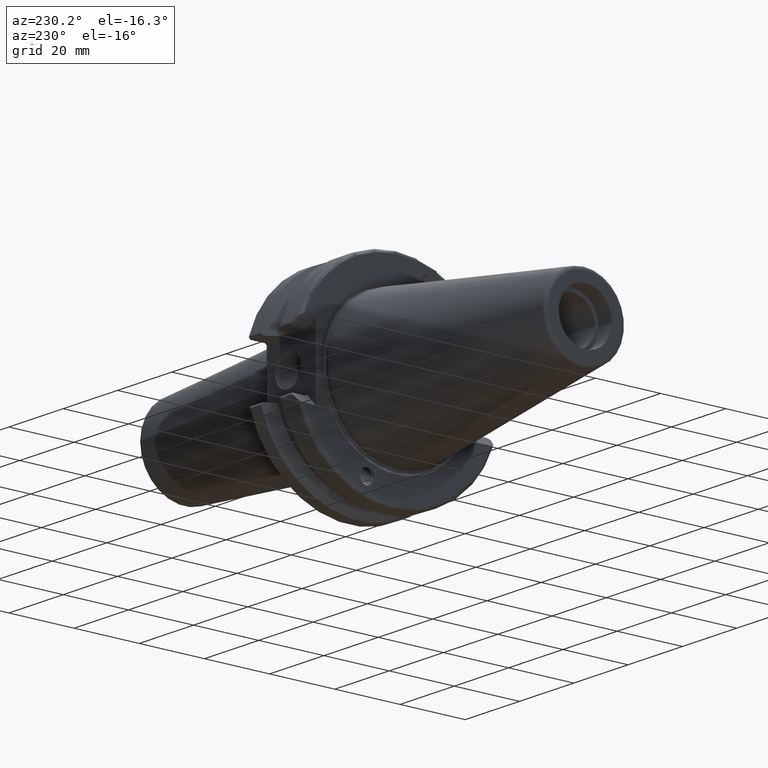
[diagram: clean part render]
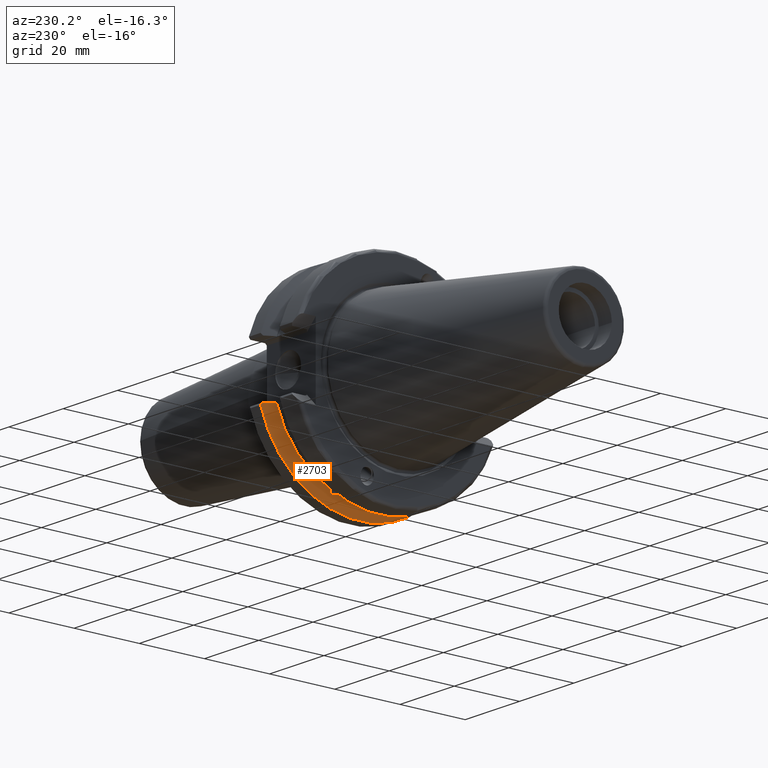
[diagram: same view with one face highlighted and labeled with its STEP entity id]
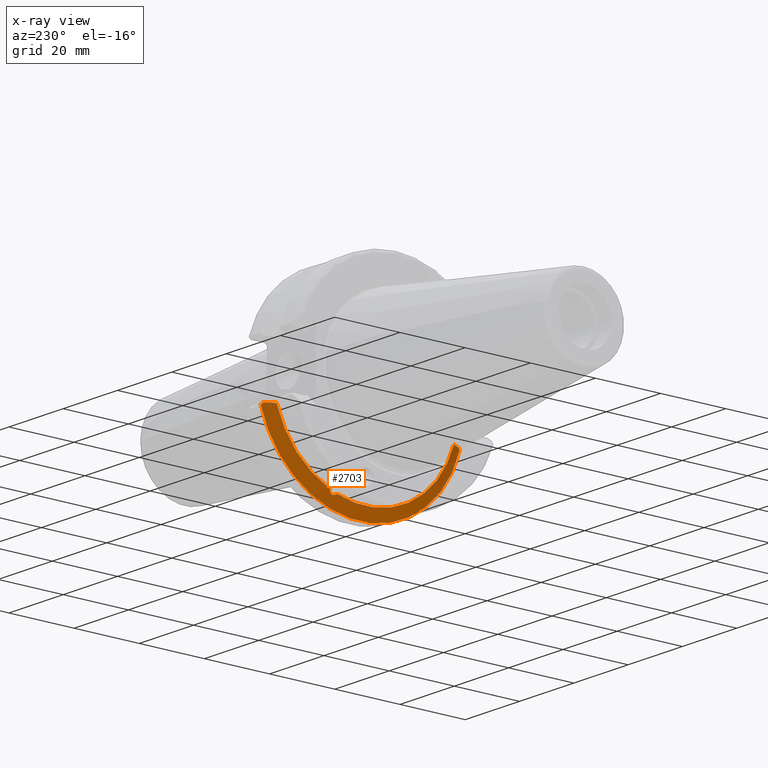
[diagram: x-ray of the same camera — body ghosted, the highlighted face saturated]
A machine part, auxiliary view. The second image highlights one B-rep face of the part: STEP entity #2703.
The next image is the same camera in x-ray: the body ghosted, the highlighted face saturated — about 6% of this face is hidden behind the body in this view.
In plain terms, the highlighted conical surface has half-angle 60 deg.
Its self-contained STEP definition (entity closure, byte-faithful):
#387=CARTESIAN_POINT('',(1.277249942683E1,8.575268136318E0,-2.708252619794E1));
#388=CARTESIAN_POINT('',(1.283861905739E1,8.698086764688E0,-2.716376388982E1));
#389=CARTESIAN_POINT('',(1.295661291925E1,8.945000142881E0,-2.729902656954E1));
#390=CARTESIAN_POINT('',(1.308944832353E1,9.323980218562E0,-2.741513818545E1));
#391=CARTESIAN_POINT('',(1.316738103024E1,9.689504113775E0,-2.743138412104E1));
#392=CARTESIAN_POINT('',(1.318395496575E1,1.003428994943E1,-2.733766252636E1));
#393=CARTESIAN_POINT('',(1.314497400637E1,1.030594146063E1,-2.716408278114E1));
#394=CARTESIAN_POINT('',(1.306045462679E1,1.053472152938E1,-2.691898615772E1));
#395=CARTESIAN_POINT('',(1.293760240626E1,1.071234636555E1,-2.661947753468E1));
#396=CARTESIAN_POINT('',(1.283135995051E1,1.080200618521E1,-2.638417320979E1));
#397=CARTESIAN_POINT('',(1.277249942683E1,1.083927577496E1,-2.625849480732E1));
#399=CARTESIAN_POINT('',(1.277249942683E1,0.E0,0.E0));
#400=DIRECTION('',(-1.E0,0.E0,0.E0));
#401=DIRECTION('',(0.E0,3.018640251088E-1,-9.533509901107E-1));
#402=AXIS2_PLACEMENT_3D('',#399,#400,#401);
#404=CARTESIAN_POINT('',(1.433535706711E1,-3.001743493372E1,-8.19E0));
#405=CARTESIAN_POINT('',(1.415629793946E1,-2.969595884884E1,-8.19E0));
#406=CARTESIAN_POINT('',(1.380177420519E1,-2.905874460031E1,-8.19E0));
#407=CARTESIAN_POINT('',(1.328084591441E1,-2.812019021653E1,-8.19E0));
#408=CARTESIAN_POINT('',(1.294074254485E1,-2.750584123433E1,-8.19E0));
#409=CARTESIAN_POINT('',(1.277249942683E1,-2.720151372390E1,-8.19E0));
#411=CARTESIAN_POINT('',(1.470216676908E1,-3.049771389266E1,-8.82904E0));
#412=CARTESIAN_POINT('',(1.464004073602E1,-3.041684159757E1,-8.721434554270E0));
#413=CARTESIAN_POINT('',(1.451677983954E1,-3.025592278511E1,-8.507322409646E0));
#414=CARTESIAN_POINT('',(1.439550105999E1,-3.009665559045E1,-8.295407841708E0));
#415=CARTESIAN_POINT('',(1.433535706711E1,-3.001743493372E1,-8.19E0));
#417=CARTESIAN_POINT('',(1.470216676908E1,0.E0,0.E0));
#418=DIRECTION('',(1.E0,0.E0,0.E0));
#419=DIRECTION('',(0.E0,-9.605579178790E-1,-2.7808E-1));
#420=AXIS2_PLACEMENT_3D('',#417,#418,#419);
#422=CARTESIAN_POINT('',(1.433535706711E1,3.001743493372E1,-8.19E0));
#423=CARTESIAN_POINT('',(1.439578123522E1,3.009702463257E1,-8.295898874406E0));
#424=CARTESIAN_POINT('',(1.451734298631E1,3.025666010523E1,-8.508303458351E0));
#425=CARTESIAN_POINT('',(1.464032365326E1,3.041720988386E1,-8.721924581301E0));
#426=CARTESIAN_POINT('',(1.470216676908E1,3.049771389266E1,-8.82904E0));
#428=CARTESIAN_POINT('',(1.277249942683E1,2.720151372390E1,-8.19E0));
#429=CARTESIAN_POINT('',(1.294066870855E1,2.750570767514E1,-8.19E0));
#430=CARTESIAN_POINT('',(1.328067327825E1,2.811987867394E1,-8.19E0));
#431=CARTESIAN_POINT('',(1.380159755227E1,2.905842682706E1,-8.19E0));
#432=CARTESIAN_POINT('',(1.415622210057E1,2.969582269052E1,-8.19E0));
#433=CARTESIAN_POINT('',(1.433535706711E1,3.001743493372E1,-8.19E0));
#435=CARTESIAN_POINT('',(1.277249942683E1,0.E0,0.E0));
#436=DIRECTION('',(-1.E0,0.E0,0.E0));
#437=DIRECTION('',(0.E0,9.575395534250E-1,-2.883019313613E-1));
#438=AXIS2_PLACEMENT_3D('',#435,#436,#437);
#1771=CARTESIAN_POINT('',(1.277249942683E1,2.720151372390E1,-8.19E0));
#1772=VERTEX_POINT('',#1771);
#1791=CARTESIAN_POINT('',(1.277249942683E1,-2.720151372390E1,-8.19E0));
#1792=VERTEX_POINT('',#1791);
#1861=CARTESIAN_POINT('',(1.433535706711E1,3.001743493372E1,-8.19E0));
#1863=VERTEX_POINT('',#1861);
#1865=VERTEX_POINT('',#426);
#1892=VERTEX_POINT('',#411);
#1893=VERTEX_POINT('',#415);
#1963=VERTEX_POINT('',#387);
#1964=VERTEX_POINT('',#397);
#2680=CARTESIAN_POINT('',(1.373733309795E1,0.E0,0.E0));
#2681=DIRECTION('',(1.E0,0.E0,0.E0));
#2682=DIRECTION('',(0.E0,0.E0,1.E0));
#2683=AXIS2_PLACEMENT_3D('',#2680,#2681,#2682);
#2684=CONICAL_SURFACE('',#2683,3.007885906076E1,6.E1);
#2686=ORIENTED_EDGE('',*,*,#2685,.F.);
#2688=ORIENTED_EDGE('',*,*,#2687,.T.);
#2690=ORIENTED_EDGE('',*,*,#2689,.F.);
#2692=ORIENTED_EDGE('',*,*,#2691,.F.);
#2694=ORIENTED_EDGE('',*,*,#2693,.T.);
#2696=ORIENTED_EDGE('',*,*,#2695,.F.);
#2698=ORIENTED_EDGE('',*,*,#2697,.F.);
#2700=ORIENTED_EDGE('',*,*,#2699,.T.);
#2701=EDGE_LOOP('',(#2686,#2688,#2690,#2692,#2694,#2696,#2698,#2700));
#2702=FACE_OUTER_BOUND('',#2701,.F.);
#2703=ADVANCED_FACE('',(#2702),#2684,.T.);
#398=B_SPLINE_CURVE_WITH_KNOTS('',3,(#387,#388,#389,#390,#391,#392,#393,#394,
#395,#396,#397),.UNSPECIFIED.,.F.,.F.,(4,1,1,1,1,1,1,1,4),(0.E0,1.25E-1,2.5E-1,
3.75E-1,5.E-1,6.25E-1,7.5E-1,8.75E-1,1.E0),.UNSPECIFIED.);
#403=CIRCLE('',#402,2.840771812152E1);
#410=B_SPLINE_CURVE_WITH_KNOTS('',3,(#404,#405,#406,#407,#408,#409),
.UNSPECIFIED.,.F.,.F.,(4,1,1,4),(0.E0,3.333333333333E-1,6.666666666667E-1,1.E0),
.UNSPECIFIED.);
#416=B_SPLINE_CURVE_WITH_KNOTS('',3,(#411,#412,#413,#414,#415),.UNSPECIFIED.,
.F.,.F.,(4,1,4),(0.E0,5.E-1,1.E0),.UNSPECIFIED.);
#421=CIRCLE('',#420,3.175E1);
#427=B_SPLINE_CURVE_WITH_KNOTS('',3,(#422,#423,#424,#425,#426),.UNSPECIFIED.,
.F.,.F.,(4,1,4),(0.E0,5.E-1,1.E0),.UNSPECIFIED.);
#434=B_SPLINE_CURVE_WITH_KNOTS('',3,(#428,#429,#430,#431,#432,#433),
.UNSPECIFIED.,.F.,.F.,(4,1,1,4),(0.E0,3.333333333333E-1,6.666666666667E-1,1.E0),
.UNSPECIFIED.);
#439=CIRCLE('',#438,2.840771812152E1);
#2685=EDGE_CURVE('',#1963,#1964,#398,.T.);
#2687=EDGE_CURVE('',#1963,#1792,#403,.T.);
#2689=EDGE_CURVE('',#1893,#1792,#410,.T.);
#2691=EDGE_CURVE('',#1892,#1893,#416,.T.);
#2693=EDGE_CURVE('',#1892,#1865,#421,.T.);
#2695=EDGE_CURVE('',#1863,#1865,#427,.T.);
#2697=EDGE_CURVE('',#1772,#1863,#434,.T.);
#2699=EDGE_CURVE('',#1772,#1964,#439,.T.);